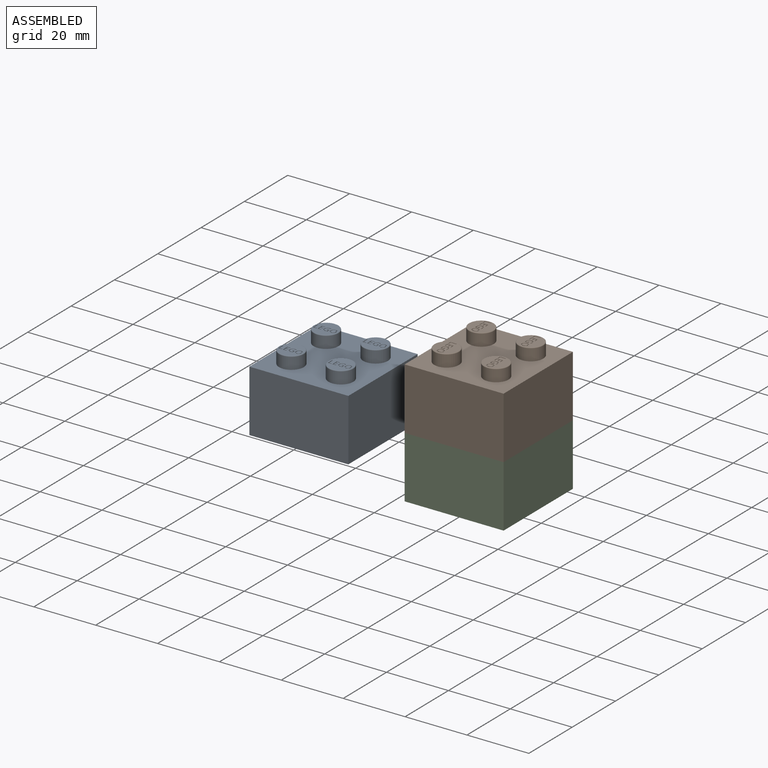
[diagram: assembled view]
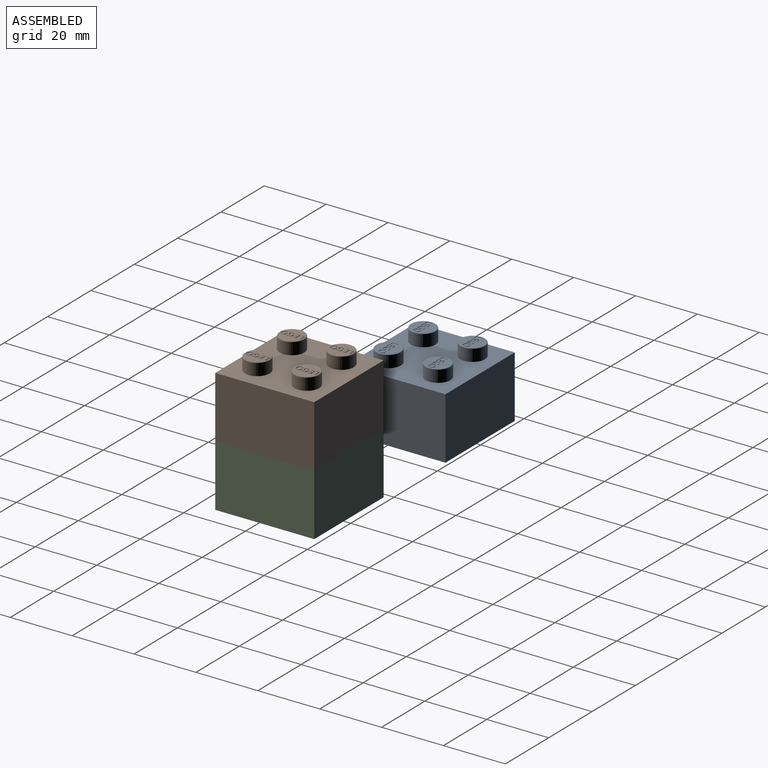
[diagram: assembled view, second angle]
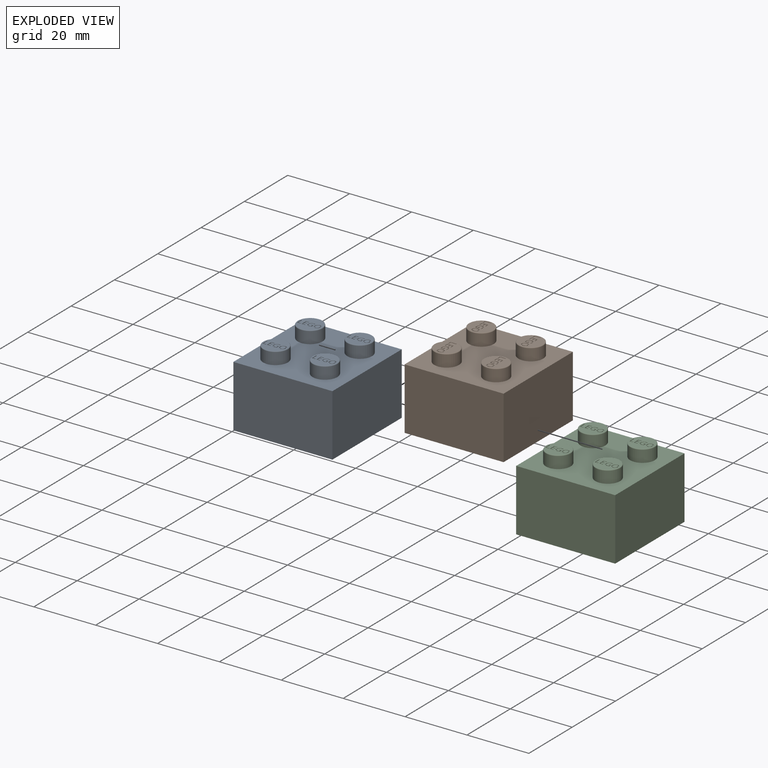
[diagram: exploded view]
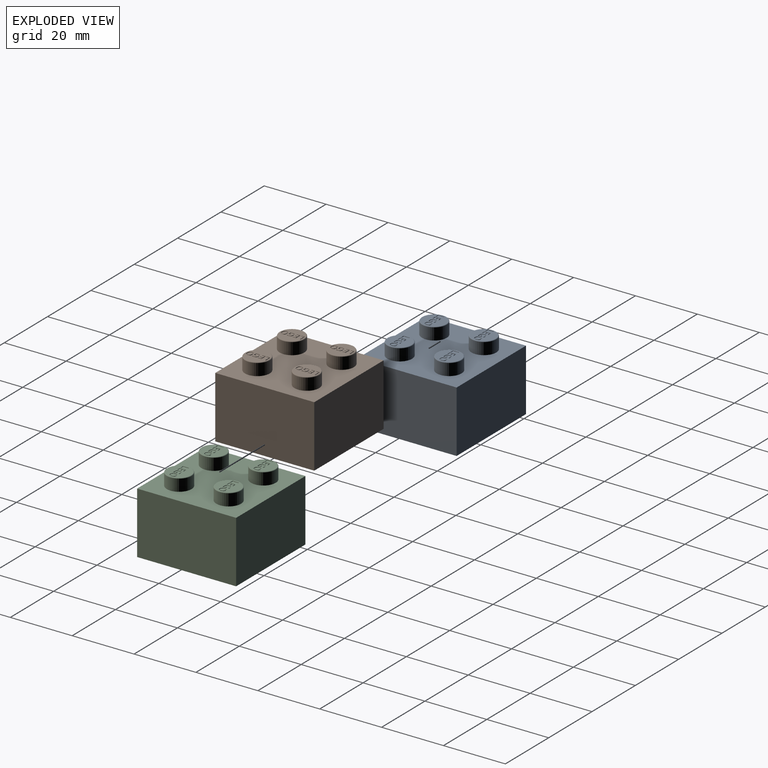
[diagram: exploded view, second angle]
ASSEMBLY  parts=3 mates=2
PART A: 267 faces, bbox 32x32x24 mm
  f0: plane 1.66x1.36mm, normal (0,0,1), area 1.9mm2, adj f3,f4,f5,f6,f7,f8,f9,f10
  f1: plane 1.66x1.36mm, normal (0,0,1), area 1.9mm2, adj f61,f62,f63,f64,f65,f66,f67,f68
  f2: plane 1.66x1.36mm, normal (0,0,1), area 1.9mm2, adj f119,f120,f121,f122,f123,f124,f125,f126
  f3: extruded ~0.51x0.21mm, area 0.1mm2, adj f0,f4,f10,f19
  f4: extruded ~0.51x0.21mm, area 0.1mm2, adj f0,f3,f5,f19
  f5: extruded ~0.62x0.2mm, area 0.1mm2, adj f0,f4,f6,f19
  f6: extruded ~0.62x0.2mm, area 0.1mm2, adj f0,f5,f7,f19
  f7: extruded ~0.51x0.21mm, area 0.1mm2, adj f0,f6,f8,f19
  f8: extruded ~0.51x0.21mm, area 0.1mm2, adj f0,f7,f9,f19
  f9: extruded ~0.62x0.2mm, area 0.1mm2, adj f0,f8,f10,f19
  f10: extruded ~0.62x0.2mm, area 0.1mm2, adj f0,f3,f9,f19
  f11: extruded ~0.68x0.28mm, area 0.2mm2, adj f12,f18,f19,f180
  f12: extruded ~0.69x0.27mm, area 0.2mm2, adj f11,f13,f19,f180
  f13: extruded ~0.77x0.24mm, area 0.2mm2, adj f12,f14,f19,f180
  f14: extruded ~0.77x0.24mm, area 0.2mm2, adj f13,f15,f19,f180
  f15: extruded ~0.69x0.27mm, area 0.2mm2, adj f14,f16,f19,f180
  f16: extruded ~0.68x0.28mm, area 0.2mm2, adj f15,f17,f19,f180
  f17: extruded ~0.76x0.24mm, area 0.2mm2, adj f16,f18,f19,f180
  f18: extruded ~0.76x0.25mm, area 0.2mm2, adj f11,f17,f19,f180
  f19: plane 2.08x1.86mm, normal (0,0,1), area 1.3mm2, adj f3,f4,f5,f6,f7,f8,f9,f10
  f20: plane 0.98x0.2mm, normal (-1,0,0), area 0.2mm2, adj f21,f39,f40,f180
  f21: extruded ~0.33x0.2mm, area 0.1mm2, adj f20,f22,f40,f180
  f22: extruded ~0.38x0.2mm, area 0.1mm2, adj f21,f23,f40,f180
  f23: extruded ~0.71x0.27mm, area 0.2mm2, adj f22,f24,f40,f180
  f24: extruded ~0.76x0.26mm, area 0.2mm2, adj f23,f25,f40,f180
  f25: extruded ~0.55x0.2mm, area 0.1mm2, adj f24,f26,f40,f180
  f26: extruded ~0.36x0.36mm, area 0.1mm2, adj f25,f27,f40,f180
  f27: extruded ~0.56x0.2mm, area 0.1mm2, adj f26,f28,f40,f180
  f28: extruded ~0.6x0.2mm, area 0.1mm2, adj f27,f29,f40,f180
  f29: plane 0.21x0.2mm, normal (-0.92,0.4,0), area 0mm2, adj f28,f30,f40,f180
  f30: extruded ~0.53x0.2mm, area 0.1mm2, adj f29,f31,f40,f180
  f31: extruded ~0.58x0.22mm, area 0.1mm2, adj f30,f32,f40,f180
  f32: extruded ~0.61x0.21mm, area 0.1mm2, adj f31,f33,f40,f180
  f33: extruded ~0.62x0.2mm, area 0.1mm2, adj f32,f34,f40,f180
  f34: extruded ~0.59x0.21mm, area 0.1mm2, adj f33,f35,f40,f180
  f35: extruded ~0.41x0.2mm, area 0.1mm2, adj f34,f36,f40,f180
  f36: plane 0.62x0.2mm, normal (1,0,0), area 0.1mm2, adj f35,f37,f40,f180
  f37: plane 0.45x0.2mm, normal (0,1,0), area 0.1mm2, adj f36,f38,f40,f180
  f38: plane 0.21x0.2mm, normal (1,0,0), area 0mm2, adj f37,f39,f40,f180
  f39: plane 0.69x0.2mm, normal (0,-1,0), area 0.1mm2, adj f20,f38,f40,f180
  f40: plane 2.08x1.68mm, normal (0,0,1), area 1.2mm2, adj f20,f21,f22,f23,f24,f25,f26,f27
  f41: plane 1.13x0.2mm, normal (0,1,0), area 0.2mm2, adj f42,f52,f53,f180
  f42: plane 0.21x0.2mm, normal (-1,0,0), area 0mm2, adj f41,f43,f53,f180
  f43: plane 0.89x0.2mm, normal (0,-1,0), area 0.2mm2, adj f42,f44,f53,f180
  f44: plane 0.74x0.2mm, normal (-1,0,0), area 0.1mm2, adj f43,f45,f53,f180
  f45: plane 0.84x0.2mm, normal (0,1,0), area 0.2mm2, adj f44,f46,f53,f180
  f46: plane 0.21x0.2mm, normal (-1,0,0), area 0mm2, adj f45,f47,f53,f180
  f47: plane 0.84x0.2mm, normal (0,-1,0), area 0.2mm2, adj f46,f48,f53,f180
  f48: plane 0.65x0.2mm, normal (-1,0,0), area 0.1mm2, adj f47,f49,f53,f180
  f49: plane 0.89x0.2mm, normal (0,1,0), area 0.2mm2, adj f48,f50,f53,f180
  f50: plane 0.21x0.2mm, normal (-1,0,0), area 0mm2, adj f49,f51,f53,f180
  f51: plane 1.13x0.2mm, normal (0,-1,0), area 0.2mm2, adj f50,f52,f53,f180
  f52: plane 2.02x0.2mm, normal (1,0,0), area 0.4mm2, adj f41,f51,f53,f180
  f53: plane 2.02x1.13mm, normal (0,0,1), area 1mm2, adj f41,f42,f43,f44,f45,f46,f47,f48
  f54: plane 0.23x0.2mm, normal (0,-1,0), area 0mm2, adj f55,f59,f60,f180
  f55: plane 1.81x0.2mm, normal (-1,0,0), area 0.4mm2, adj f54,f56,f60,f180
  f56: plane 0.89x0.2mm, normal (0,-1,0), area 0.2mm2, adj f55,f57,f60,f180
  f57: plane 0.21x0.2mm, normal (-1,0,0), area 0mm2, adj f56,f58,f60,f180
  f58: plane 1.13x0.2mm, normal (0,1,0), area 0.2mm2, adj f57,f59,f60,f180
  f59: plane 2.02x0.2mm, normal (1,0,0), area 0.4mm2, adj f54,f58,f60,f180
  f60: plane 2.02x1.13mm, normal (0,0,1), area 0.7mm2, adj f54,f55,f56,f57,f58,f59
  f61: extruded ~0.51x0.21mm, area 0.1mm2, adj f1,f62,f68,f77
  f62: extruded ~0.51x0.21mm, area 0.1mm2, adj f1,f61,f63,f77
  f63: extruded ~0.62x0.2mm, area 0.1mm2, adj f1,f62,f64,f77
  f64: extruded ~0.62x0.2mm, area 0.1mm2, adj f1,f63,f65,f77
  f65: extruded ~0.51x0.21mm, area 0.1mm2, adj f1,f64,f66,f77
  f66: extruded ~0.51x0.21mm, area 0.1mm2, adj f1,f65,f67,f77
  f67: extruded ~0.62x0.2mm, area 0.1mm2, adj f1,f66,f68,f77
  f68: extruded ~0.62x0.2mm, area 0.1mm2, adj f1,f61,f67,f77
  f69: extruded ~0.68x0.28mm, area 0.2mm2, adj f70,f76,f77,f182
  f70: extruded ~0.69x0.27mm, area 0.2mm2, adj f69,f71,f77,f182
  f71: extruded ~0.77x0.24mm, area 0.2mm2, adj f70,f72,f77,f182
  f72: extruded ~0.77x0.24mm, area 0.2mm2, adj f71,f73,f77,f182
  f73: extruded ~0.69x0.27mm, area 0.2mm2, adj f72,f74,f77,f182
  f74: extruded ~0.68x0.28mm, area 0.2mm2, adj f73,f75,f77,f182
  f75: extruded ~0.76x0.24mm, area 0.2mm2, adj f74,f76,f77,f182
  f76: extruded ~0.76x0.25mm, area 0.2mm2, adj f69,f75,f77,f182
  f77: plane 2.08x1.86mm, normal (0,0,1), area 1.3mm2, adj f61,f62,f63,f64,f65,f66,f67,f68
  f78: plane 0.98x0.2mm, normal (-1,0,0), area 0.2mm2, adj f79,f97,f98,f182
  f79: extruded ~0.33x0.2mm, area 0.1mm2, adj f78,f80,f98,f182
  f80: extruded ~0.38x0.2mm, area 0.1mm2, adj f79,f81,f98,f182
  f81: extruded ~0.71x0.27mm, area 0.2mm2, adj f80,f82,f98,f182
  f82: extruded ~0.76x0.26mm, area 0.2mm2, adj f81,f83,f98,f182
  f83: extruded ~0.55x0.2mm, area 0.1mm2, adj f82,f84,f98,f182
  f84: extruded ~0.36x0.36mm, area 0.1mm2, adj f83,f85,f98,f182
  f85: extruded ~0.56x0.2mm, area 0.1mm2, adj f84,f86,f98,f182
  f86: extruded ~0.6x0.2mm, area 0.1mm2, adj f85,f87,f98,f182
  f87: plane 0.21x0.2mm, normal (-0.92,0.4,0), area 0mm2, adj f86,f88,f98,f182
  f88: extruded ~0.53x0.2mm, area 0.1mm2, adj f87,f89,f98,f182
  f89: extruded ~0.58x0.22mm, area 0.1mm2, adj f88,f90,f98,f182
  f90: extruded ~0.61x0.21mm, area 0.1mm2, adj f89,f91,f98,f182
  f91: extruded ~0.62x0.2mm, area 0.1mm2, adj f90,f92,f98,f182
  f92: extruded ~0.59x0.21mm, area 0.1mm2, adj f91,f93,f98,f182
  f93: extruded ~0.41x0.2mm, area 0.1mm2, adj f92,f94,f98,f182
  f94: plane 0.62x0.2mm, normal (1,0,0), area 0.1mm2, adj f93,f95,f98,f182
  f95: plane 0.45x0.2mm, normal (0,1,0), area 0.1mm2, adj f94,f96,f98,f182
  f96: plane 0.21x0.2mm, normal (1,0,0), area 0mm2, adj f95,f97,f98,f182
  f97: plane 0.69x0.2mm, normal (0,-1,0), area 0.1mm2, adj f78,f96,f98,f182
  f98: plane 2.08x1.68mm, normal (0,0,1), area 1.2mm2, adj f78,f79,f80,f81,f82,f83,f84,f85
  f99: plane 1.13x0.2mm, normal (0,1,0), area 0.2mm2, adj f100,f110,f111,f182
  f100: plane 0.21x0.2mm, normal (-1,0,0), area 0mm2, adj f99,f101,f111,f182
  f101: plane 0.89x0.2mm, normal (0,-1,0), area 0.2mm2, adj f100,f102,f111,f182
  f102: plane 0.74x0.2mm, normal (-1,0,0), area 0.1mm2, adj f101,f103,f111,f182
  f103: plane 0.84x0.2mm, normal (0,1,0), area 0.2mm2, adj f102,f104,f111,f182
  f104: plane 0.21x0.2mm, normal (-1,0,0), area 0mm2, adj f103,f105,f111,f182
  f105: plane 0.84x0.2mm, normal (0,-1,0), area 0.2mm2, adj f104,f106,f111,f182
  f106: plane 0.65x0.2mm, normal (-1,0,0), area 0.1mm2, adj f105,f107,f111,f182
  f107: plane 0.89x0.2mm, normal (0,1,0), area 0.2mm2, adj f106,f108,f111,f182
  f108: plane 0.21x0.2mm, normal (-1,0,0), area 0mm2, adj f107,f109,f111,f182
  f109: plane 1.13x0.2mm, normal (0,-1,0), area 0.2mm2, adj f108,f110,f111,f182
  f110: plane 2.02x0.2mm, normal (1,0,0), area 0.4mm2, adj f99,f109,f111,f182
  f111: plane 2.02x1.13mm, normal (0,0,1), area 1mm2, adj f99,f100,f101,f102,f103,f104,f105,f106
  f112: plane 0.23x0.2mm, normal (0,-1,0), area 0mm2, adj f113,f117,f118,f182
  f113: plane 1.81x0.2mm, normal (-1,0,0), area 0.4mm2, adj f112,f114,f118,f182
  f114: plane 0.89x0.2mm, normal (0,-1,0), area 0.2mm2, adj f113,f115,f118,f182
  f115: plane 0.21x0.2mm, normal (-1,0,0), area 0mm2, adj f114,f116,f118,f182
  f116: plane 1.13x0.2mm, normal (0,1,0), area 0.2mm2, adj f115,f117,f118,f182
  f117: plane 2.02x0.2mm, normal (1,0,0), area 0.4mm2, adj f112,f116,f118,f182
  f118: plane 2.02x1.13mm, normal (0,0,1), area 0.7mm2, adj f112,f113,f114,f115,f116,f117
  f119: extruded ~0.51x0.21mm, area 0.1mm2, adj f2,f120,f126,f135
  f120: extruded ~0.51x0.21mm, area 0.1mm2, adj f2,f119,f121,f135
  f121: extruded ~0.62x0.2mm, area 0.1mm2, adj f2,f120,f122,f135
  f122: extruded ~0.62x0.2mm, area 0.1mm2, adj f2,f121,f123,f135
  f123: extruded ~0.51x0.21mm, area 0.1mm2, adj f2,f122,f124,f135
  f124: extruded ~0.51x0.21mm, area 0.1mm2, adj f2,f123,f125,f135
  f125: extruded ~0.62x0.2mm, area 0.1mm2, adj f2,f124,f126,f135
  f126: extruded ~0.62x0.2mm, area 0.1mm2, adj f2,f119,f125,f135
  f127: extruded ~0.68x0.28mm, area 0.2mm2, adj f128,f134,f135,f184
  f128: extruded ~0.69x0.27mm, area 0.2mm2, adj f127,f129,f135,f184
  f129: extruded ~0.77x0.24mm, area 0.2mm2, adj f128,f130,f135,f184
  f130: extruded ~0.77x0.24mm, area 0.2mm2, adj f129,f131,f135,f184
  f131: extruded ~0.69x0.27mm, area 0.2mm2, adj f130,f132,f135,f184
  f132: extruded ~0.68x0.28mm, area 0.2mm2, adj f131,f133,f135,f184
  f133: extruded ~0.76x0.24mm, area 0.2mm2, adj f132,f134,f135,f184
  f134: extruded ~0.76x0.25mm, area 0.2mm2, adj f127,f133,f135,f184
  f135: plane 2.08x1.86mm, normal (0,0,1), area 1.3mm2, adj f119,f120,f121,f122,f123,f124,f125,f126
  f136: plane 0.98x0.2mm, normal (-1,0,0), area 0.2mm2, adj f137,f155,f156,f184
  f137: extruded ~0.33x0.2mm, area 0.1mm2, adj f136,f138,f156,f184
  f138: extruded ~0.38x0.2mm, area 0.1mm2, adj f137,f139,f156,f184
  f139: extruded ~0.71x0.27mm, area 0.2mm2, adj f138,f140,f156,f184
  f140: extruded ~0.76x0.26mm, area 0.2mm2, adj f139,f141,f156,f184
  f141: extruded ~0.55x0.2mm, area 0.1mm2, adj f140,f142,f156,f184
  f142: extruded ~0.36x0.36mm, area 0.1mm2, adj f141,f143,f156,f184
  f143: extruded ~0.56x0.2mm, area 0.1mm2, adj f142,f144,f156,f184
  f144: extruded ~0.6x0.2mm, area 0.1mm2, adj f143,f145,f156,f184
  f145: plane 0.21x0.2mm, normal (-0.92,0.4,0), area 0mm2, adj f144,f146,f156,f184
  f146: extruded ~0.53x0.2mm, area 0.1mm2, adj f145,f147,f156,f184
  f147: extruded ~0.58x0.22mm, area 0.1mm2, adj f146,f148,f156,f184
  f148: extruded ~0.61x0.21mm, area 0.1mm2, adj f147,f149,f156,f184
  f149: extruded ~0.62x0.2mm, area 0.1mm2, adj f148,f150,f156,f184
  f150: extruded ~0.59x0.21mm, area 0.1mm2, adj f149,f151,f156,f184
  f151: extruded ~0.41x0.2mm, area 0.1mm2, adj f150,f152,f156,f184
  f152: plane 0.62x0.2mm, normal (1,0,0), area 0.1mm2, adj f151,f153,f156,f184
  f153: plane 0.45x0.2mm, normal (0,1,0), area 0.1mm2, adj f152,f154,f156,f184
  f154: plane 0.21x0.2mm, normal (1,0,0), area 0mm2, adj f153,f155,f156,f184
  f155: plane 0.69x0.2mm, normal (0,-1,0), area 0.1mm2, adj f136,f154,f156,f184
  f156: plane 2.08x1.68mm, normal (0,0,1), area 1.2mm2, adj f136,f137,f138,f139,f140,f141,f142,f143
  f157: plane 1.13x0.2mm, normal (0,1,0), area 0.2mm2, adj f158,f168,f169,f184
  f158: plane 0.21x0.2mm, normal (-1,0,0), area 0mm2, adj f157,f159,f169,f184
  f159: plane 0.89x0.2mm, normal (0,-1,0), area 0.2mm2, adj f158,f160,f169,f184
  f160: plane 0.74x0.2mm, normal (-1,0,0), area 0.1mm2, adj f159,f161,f169,f184
  f161: plane 0.84x0.2mm, normal (0,1,0), area 0.2mm2, adj f160,f162,f169,f184
  f162: plane 0.21x0.2mm, normal (-1,0,0), area 0mm2, adj f161,f163,f169,f184
  f163: plane 0.84x0.2mm, normal (0,-1,0), area 0.2mm2, adj f162,f164,f169,f184
  f164: plane 0.65x0.2mm, normal (-1,0,0), area 0.1mm2, adj f163,f165,f169,f184
  f165: plane 0.89x0.2mm, normal (0,1,0), area 0.2mm2, adj f164,f166,f169,f184
  f166: plane 0.21x0.2mm, normal (-1,0,0), area 0mm2, adj f165,f167,f169,f184
  f167: plane 1.13x0.2mm, normal (0,-1,0), area 0.2mm2, adj f166,f168,f169,f184
  f168: plane 2.02x0.2mm, normal (1,0,0), area 0.4mm2, adj f157,f167,f169,f184
  f169: plane 2.02x1.13mm, normal (0,0,1), area 1mm2, adj f157,f158,f159,f160,f161,f162,f163,f164
  f170: plane 0.23x0.2mm, normal (0,-1,0), area 0mm2, adj f171,f175,f176,f184
  f171: plane 1.81x0.2mm, normal (-1,0,0), area 0.4mm2, adj f170,f172,f176,f184
  f172: plane 0.89x0.2mm, normal (0,-1,0), area 0.2mm2, adj f171,f173,f176,f184
  f173: plane 0.21x0.2mm, normal (-1,0,0), area 0mm2, adj f172,f174,f176,f184
  f174: plane 1.13x0.2mm, normal (0,1,0), area 0.2mm2, adj f173,f175,f176,f184
  f175: plane 2.02x0.2mm, normal (1,0,0), area 0.4mm2, adj f170,f174,f176,f184
  f176: plane 2.02x1.13mm, normal (0,0,1), area 0.7mm2, adj f170,f171,f172,f173,f174,f175
  f177: plane 7.6x7.6mm, normal (0,0,1), area 39.3mm2, adj f194,f215,f216,f217,f218,f219,f220,f221
  f178: plane 32x32mm, normal (0,0,-1), area 240mm2, adj f185,f186,f187,f188,f201,f202,f203,f204
  f179: cylinder r=4mm len=8mm, axis (0,0,-1), area 95.5mm2, adj f189,f191
  f180: plane 7.6x7.6mm, normal (0,0,1), area 39.3mm2, adj f11,f12,f13,f14,f15,f16,f17,f18
  f181: cylinder r=4mm len=8mm, axis (0,0,-1), area 95.5mm2, adj f189,f192
  f182: plane 7.6x7.6mm, normal (0,0,1), area 39.3mm2, adj f69,f70,f71,f72,f73,f74,f75,f76
  f183: cylinder r=4mm len=8mm, axis (0,0,-1), area 95.5mm2, adj f189,f193
  f184: plane 7.6x7.6mm, normal (0,0,1), area 39.3mm2, adj f127,f128,f129,f130,f131,f132,f133,f134
  f185: plane 32x20mm, normal (1,0,0), area 640mm2, adj f178,f186,f188,f189
  f186: plane 32x20mm, normal (0,1,0), area 640mm2, adj f178,f185,f187,f189
  f187: plane 32x20mm, normal (-1,0,0), area 640mm2, adj f178,f186,f188,f189
  f188: plane 32x20mm, normal (0,-1,0), area 640mm2, adj f178,f185,f187,f189
  f189: plane 32x32mm, normal (0,0,1), area 822.9mm2, adj f179,f181,f183,f185,f186,f187,f188,f190
  f190: cylinder r=4mm len=8mm, axis (0,0,-1), area 95.5mm2, adj f189,f194
  f191: torus R=3.8mm, axis (0,0,1), area 7.8mm2, adj f179,f180
  f192: torus R=3.8mm, axis (0,0,1), area 7.8mm2, adj f181,f182
  f193: torus R=3.8mm, axis (0,0,1), area 7.8mm2, adj f183,f184
  f194: torus R=3.8mm, axis (0,0,1), area 7.8mm2, adj f177,f190
  f195: cylinder r=2mm len=4mm, axis (0,0,-1), area 50.3mm2, adj f196,f205
  f196: plane 4x4mm, normal (0,0,-1), area 12.6mm2, adj f195
  f197: cylinder r=2mm len=4mm, axis (0,0,-1), area 50.3mm2, adj f198,f205
  f198: plane 4x4mm, normal (0,0,-1), area 12.6mm2, adj f197
  f199: cylinder r=2mm len=4mm, axis (0,0,-1), area 50.3mm2, adj f200,f205
  f200: plane 4x4mm, normal (0,0,-1), area 12.6mm2, adj f199
  f201: plane 28x18mm, normal (-1,0,0), area 504mm2, adj f178,f202,f204,f205
  f202: plane 28x18mm, normal (0,-1,0), area 504mm2, adj f178,f201,f203,f205
  f203: plane 28x18mm, normal (1,0,0), area 504mm2, adj f178,f202,f204,f205
  f204: plane 28x18mm, normal (0,1,0), area 504mm2, adj f178,f201,f203,f205
  f205: plane 28x28mm, normal (0,0,-1), area 733.7mm2, adj f195,f197,f199,f201,f202,f203,f204,f206
  f206: cylinder r=2mm len=4mm, axis (0,0,-1), area 50.3mm2, adj f205,f207
  f207: plane 4x4mm, normal (0,0,-1), area 12.6mm2, adj f206
  f208: extruded ~0.62x0.2mm, area 0.1mm2, adj f209,f223,f224,f266
  f209: extruded ~0.62x0.2mm, area 0.1mm2, adj f208,f210,f224,f266
  f210: extruded ~0.51x0.21mm, area 0.1mm2, adj f209,f211,f224,f266
  f211: extruded ~0.51x0.21mm, area 0.1mm2, adj f210,f212,f224,f266
  f212: extruded ~0.62x0.2mm, area 0.1mm2, adj f211,f213,f224,f266
  f213: extruded ~0.62x0.2mm, area 0.1mm2, adj f212,f214,f224,f266
  f214: extruded ~0.51x0.21mm, area 0.1mm2, adj f213,f223,f224,f266
  f215: extruded ~0.76x0.25mm, area 0.2mm2, adj f177,f216,f222,f224
  f216: extruded ~0.76x0.24mm, area 0.2mm2, adj f177,f215,f217,f224
  f217: extruded ~0.68x0.28mm, area 0.2mm2, adj f177,f216,f218,f224
  f218: extruded ~0.69x0.27mm, area 0.2mm2, adj f177,f217,f219,f224
  f219: extruded ~0.77x0.24mm, area 0.2mm2, adj f177,f218,f220,f224
  f220: extruded ~0.77x0.24mm, area 0.2mm2, adj f177,f219,f221,f224
  f221: extruded ~0.69x0.27mm, area 0.2mm2, adj f177,f220,f222,f224
  f222: extruded ~0.68x0.28mm, area 0.2mm2, adj f177,f215,f221,f224
  f223: extruded ~0.51x0.21mm, area 0.1mm2, adj f208,f214,f224,f266
  f224: plane 2.08x1.86mm, normal (0,0,1), area 1.3mm2, adj f208,f209,f210,f211,f212,f213,f214,f215
  f225: plane 0.69x0.2mm, normal (0,-1,0), area 0.1mm2, adj f177,f226,f244,f245
  f226: plane 0.21x0.2mm, normal (1,0,0), area 0mm2, adj f177,f225,f227,f245
  f227: plane 0.45x0.2mm, normal (0,1,0), area 0.1mm2, adj f177,f226,f228,f245
  f228: plane 0.62x0.2mm, normal (1,0,0), area 0.1mm2, adj f177,f227,f229,f245
  f229: extruded ~0.41x0.2mm, area 0.1mm2, adj f177,f228,f230,f245
  f230: extruded ~0.59x0.21mm, area 0.1mm2, adj f177,f229,f231,f245
  f231: extruded ~0.62x0.2mm, area 0.1mm2, adj f177,f230,f232,f245
  f232: extruded ~0.61x0.21mm, area 0.1mm2, adj f177,f231,f233,f245
  f233: extruded ~0.58x0.22mm, area 0.1mm2, adj f177,f232,f234,f245
  f234: extruded ~0.53x0.2mm, area 0.1mm2, adj f177,f233,f235,f245
  f235: plane 0.21x0.2mm, normal (-0.92,0.4,0), area 0mm2, adj f177,f234,f236,f245
  f236: extruded ~0.6x0.2mm, area 0.1mm2, adj f177,f235,f237,f245
  f237: extruded ~0.56x0.2mm, area 0.1mm2, adj f177,f236,f238,f245
  f238: extruded ~0.36x0.36mm, area 0.1mm2, adj f177,f237,f239,f245
  f239: extruded ~0.55x0.2mm, area 0.1mm2, adj f177,f238,f240,f245
  f240: extruded ~0.76x0.26mm, area 0.2mm2, adj f177,f239,f241,f245
  f241: extruded ~0.71x0.27mm, area 0.2mm2, adj f177,f240,f242,f245
  f242: extruded ~0.38x0.2mm, area 0.1mm2, adj f177,f241,f243,f245
  f243: extruded ~0.33x0.2mm, area 0.1mm2, adj f177,f242,f244,f245
  f244: plane 0.98x0.2mm, normal (-1,0,0), area 0.2mm2, adj f177,f225,f243,f245
  f245: plane 2.08x1.68mm, normal (0,0,1), area 1.2mm2, adj f225,f226,f227,f228,f229,f230,f231,f232
  f246: plane 1.13x0.2mm, normal (0,1,0), area 0.2mm2, adj f177,f247,f257,f258
  f247: plane 0.21x0.2mm, normal (-1,0,0), area 0mm2, adj f177,f246,f248,f258
  f248: plane 0.89x0.2mm, normal (0,-1,0), area 0.2mm2, adj f177,f247,f249,f258
  f249: plane 0.74x0.2mm, normal (-1,0,0), area 0.1mm2, adj f177,f248,f250,f258
  f250: plane 0.84x0.2mm, normal (0,1,0), area 0.2mm2, adj f177,f249,f251,f258
  f251: plane 0.21x0.2mm, normal (-1,0,0), area 0mm2, adj f177,f250,f252,f258
  f252: plane 0.84x0.2mm, normal (0,-1,0), area 0.2mm2, adj f177,f251,f253,f258
  f253: plane 0.65x0.2mm, normal (-1,0,0), area 0.1mm2, adj f177,f252,f254,f258
  f254: plane 0.89x0.2mm, normal (0,1,0), area 0.2mm2, adj f177,f253,f255,f258
  f255: plane 0.21x0.2mm, normal (-1,0,0), area 0mm2, adj f177,f254,f256,f258
  f256: plane 1.13x0.2mm, normal (0,-1,0), area 0.2mm2, adj f177,f255,f257,f258
  f257: plane 2.02x0.2mm, normal (1,0,0), area 0.4mm2, adj f177,f246,f256,f258
  f258: plane 2.02x1.13mm, normal (0,0,1), area 1mm2, adj f246,f247,f248,f249,f250,f251,f252,f253
  f259: plane 2.02x0.2mm, normal (1,0,0), area 0.4mm2, adj f177,f260,f264,f265
  f260: plane 1.13x0.2mm, normal (0,1,0), area 0.2mm2, adj f177,f259,f261,f265
  f261: plane 0.21x0.2mm, normal (-1,0,0), area 0mm2, adj f177,f260,f262,f265
  f262: plane 0.89x0.2mm, normal (0,-1,0), area 0.2mm2, adj f177,f261,f263,f265
  f263: plane 1.81x0.2mm, normal (-1,0,0), area 0.4mm2, adj f177,f262,f264,f265
  f264: plane 0.23x0.2mm, normal (0,-1,0), area 0mm2, adj f177,f259,f263,f265
  f265: plane 2.02x1.13mm, normal (0,0,1), area 0.7mm2, adj f259,f260,f261,f262,f263,f264
  f266: plane 1.66x1.36mm, normal (0,0,1), area 1.9mm2, adj f208,f209,f210,f211,f212,f213,f214,f223
PART B: same geometry as A
PART C: same geometry as A
PLACE A t=(-53.18,4.72,23.7)mm
PLACE B rot(axis=(0,0,-1),90deg) t=(-3.47,3.72,40.54)mm
PLACE C rot(axis=(0,0,1),0deg) t=(0.41,-0.16,20.54)mm
MATE parallel C.f185 <-> B.f186  axis (1,0,0) through (16.41,3.72,40.54)mm
MATE parallel B.f178 <-> C.f189  axis (0,0,1) through (16.41,-12.28,40.54)mm
